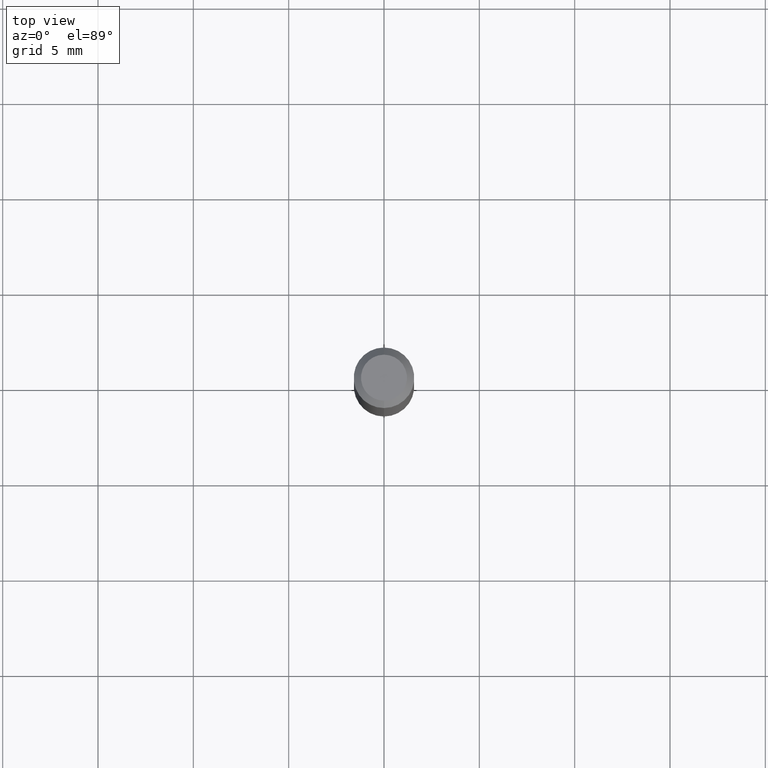
[diagram: clean part render]
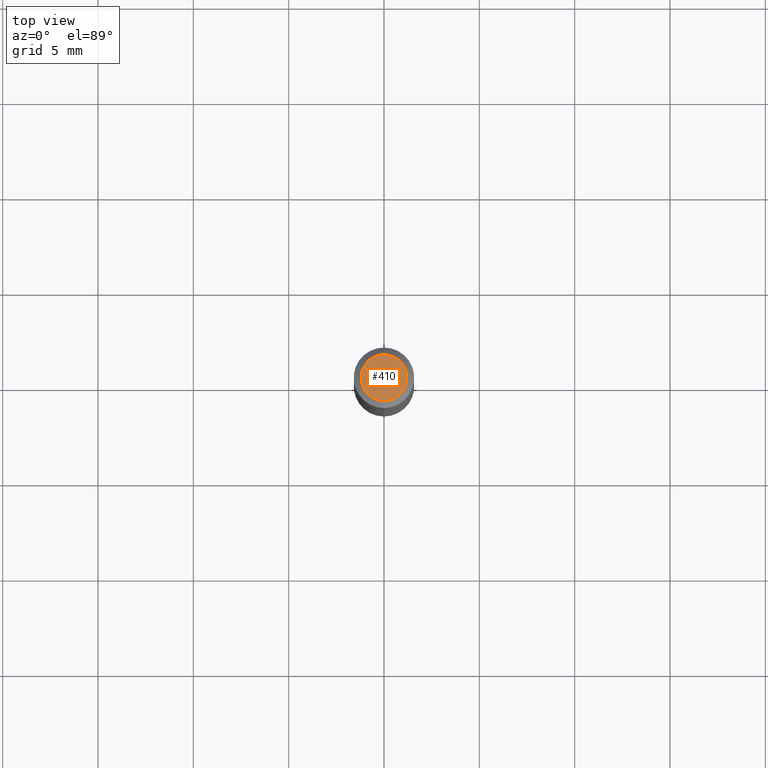
[diagram: same view with one face highlighted and labeled with its STEP entity id]
A machine part, top view. The second image highlights one B-rep face of the part: STEP entity #410.
In plain terms, the highlighted planar face has unit normal (0, -0, -1).
Its self-contained STEP definition (entity closure, byte-faithful):
#34 = AXIS2_PLACEMENT_3D ( 'NONE', #120, #317, #397 ) ;
#69 = AXIS2_PLACEMENT_3D ( 'NONE', #407, #326, #496 ) ;
#75 = EDGE_CURVE ( 'NONE', #394, #98, #107, .T. ) ;
#98 = VERTEX_POINT ( 'NONE', #332 ) ;
#107 = CIRCLE ( 'NONE', #415, 0.04749999999999999362 ) ;
#116 = EDGE_CURVE ( 'NONE', #98, #394, #177, .T. ) ;
#120 = CARTESIAN_POINT ( 'NONE',  ( 3.316907271900976096E-16, 0.04749999999999999362, -1.803014139647535596E-16 ) ) ;
#177 = CIRCLE ( 'NONE', #69, 0.04749999999999999362 ) ;
#200 = EDGE_LOOP ( 'NONE', ( #261, #348 ) ) ;
#236 = PLANE ( 'NONE',  #34 ) ;
#261 = ORIENTED_EDGE ( 'NONE', *, *, #116, .T. ) ;
#317 = DIRECTION ( 'NONE',  ( 2.445495417718738021E-29, -3.491443229612393590E-15, -1.000000000000000000 ) ) ;
#326 = DIRECTION ( 'NONE',  ( -2.445495417718738301E-29, 3.491443229612393590E-15, 1.000000000000000000 ) ) ;
#332 = CARTESIAN_POINT ( 'NONE',  ( 3.840629472727447874E-16, 0.04749999999999999362, -1.947592745229184119E-16 ) ) ;
#348 = ORIENTED_EDGE ( 'NONE', *, *, #75, .T. ) ;
#359 = CARTESIAN_POINT ( 'NONE',  ( -3.773273898774340269E-16, -0.04749999999999999362, 1.369278322902589535E-16 ) ) ;
#367 = DIRECTION ( 'NONE',  ( -2.445495417718738301E-29, 3.491443229612393590E-15, 1.000000000000000000 ) ) ;
#394 = VERTEX_POINT ( 'NONE', #359 ) ;
#397 = DIRECTION ( 'NONE',  ( 6.982962677686265922E-15, 1.000000000000000000, -3.491443229612393590E-15 ) ) ;
#407 = CARTESIAN_POINT ( 'NONE',  ( 7.071326349001730860E-46, -1.009575987209695366E-31, -2.891572111632972921E-17 ) ) ;
#410 = ADVANCED_FACE ( 'NONE', ( #484 ), #236, .F. ) ;
#415 = AXIS2_PLACEMENT_3D ( 'NONE', #490, #367, #451 ) ;
#451 = DIRECTION ( 'NONE',  ( -6.982962677686266711E-15, -1.000000000000000000, 3.491443229612393984E-15 ) ) ;
#484 = FACE_OUTER_BOUND ( 'NONE', #200, .T. ) ;
#490 = CARTESIAN_POINT ( 'NONE',  ( 7.071326349001730860E-46, -1.009575987209695366E-31, -2.891572111632972921E-17 ) ) ;
#496 = DIRECTION ( 'NONE',  ( -6.982962677686266711E-15, -1.000000000000000000, 3.491443229612393984E-15 ) ) ;